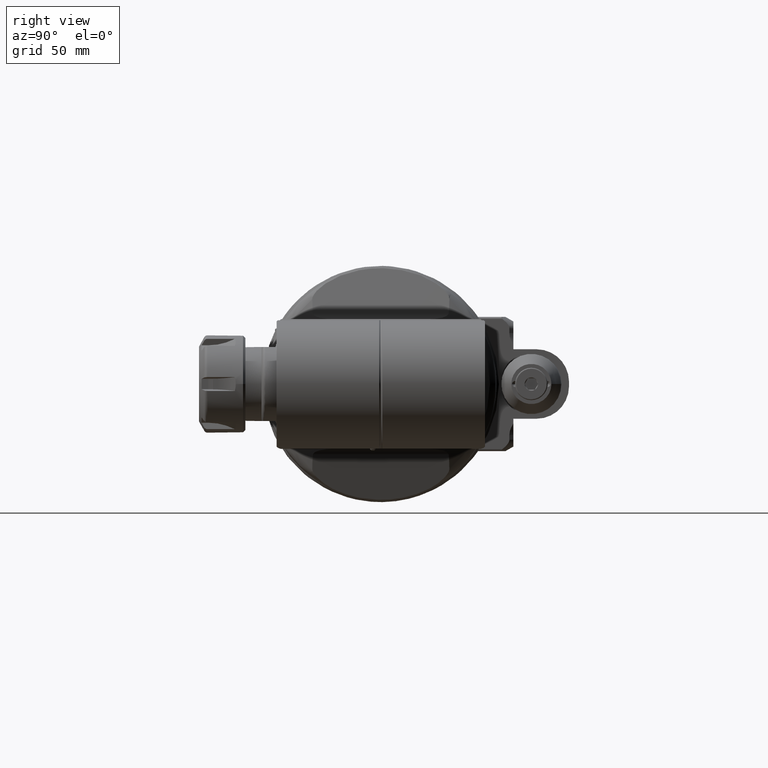
[diagram: clean part render]
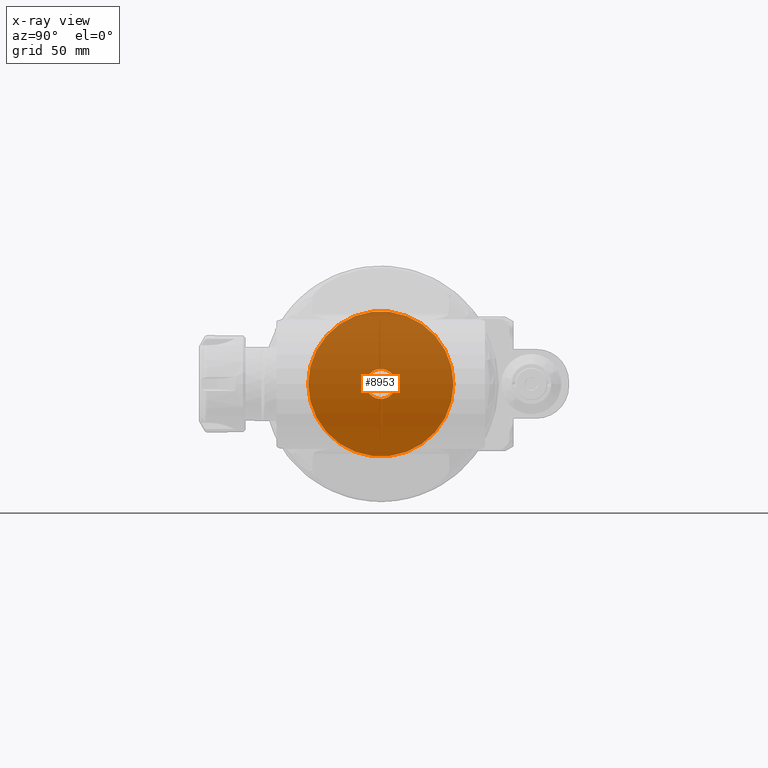
[diagram: x-ray — body ghosted, one internal face saturated and labeled with its STEP entity id]
A machine part, right view, then the same camera in x-ray: the body is ghosted and one INTERNAL B-rep face — a face not visible from any outside direction — is saturated and labeled: STEP entity #8953.
In plain terms, the highlighted planar face has unit normal (1, 0, 0).
Its self-contained STEP definition (entity closure, byte-faithful):
#286=FACE_BOUND('',#2235,.T.);
#1112=CIRCLE('',#9921,31.35);
#1121=CIRCLE('',#9946,6.5);
#1637=FACE_OUTER_BOUND('',#2234,.T.);
#2234=EDGE_LOOP('',(#8036));
#2235=EDGE_LOOP('',(#8037));
#4194=VERTEX_POINT('',#46537);
#4217=VERTEX_POINT('',#46634);
#5467=EDGE_CURVE('',#4194,#4194,#1112,.T.);
#5504=EDGE_CURVE('',#4217,#4217,#1121,.T.);
#8036=ORIENTED_EDGE('',*,*,#5467,.T.);
#8037=ORIENTED_EDGE('',*,*,#5504,.T.);
#8444=PLANE('',#9945);
#8953=ADVANCED_FACE('',(#1637,#286),#8444,.T.);
#9921=AXIS2_PLACEMENT_3D('',#46539,#12258,#12259);
#9945=AXIS2_PLACEMENT_3D('',#46633,#12324,#12325);
#9946=AXIS2_PLACEMENT_3D('',#46635,#12326,#12327);
#12258=DIRECTION('center_axis',(1.,0.,0.));
#12259=DIRECTION('ref_axis',(0.,1.,-1.400901549979E-9));
#12324=DIRECTION('center_axis',(1.,0.,0.));
#12325=DIRECTION('ref_axis',(0.,1.,-1.400901672444E-9));
#12326=DIRECTION('center_axis',(-1.,0.,0.));
#12327=DIRECTION('ref_axis',(0.,-1.,0.));
#46537=CARTESIAN_POINT('',(-44.0000000000002,31.35,-4.391826744364E-8));
#46539=CARTESIAN_POINT('Origin',(-44.0000000000002,0.,0.));
#46633=CARTESIAN_POINT('Origin',(-44.0000000000002,0.,0.));
#46634=CARTESIAN_POINT('',(-44.0000000000001,6.5,0.));
#46635=CARTESIAN_POINT('Origin',(-44.,0.,0.));